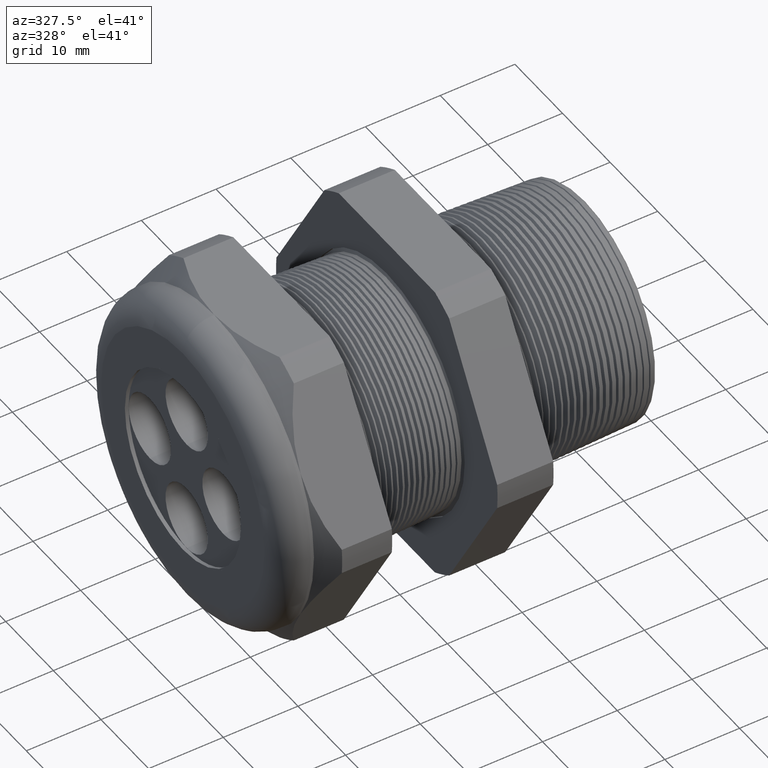
[diagram: clean part render]
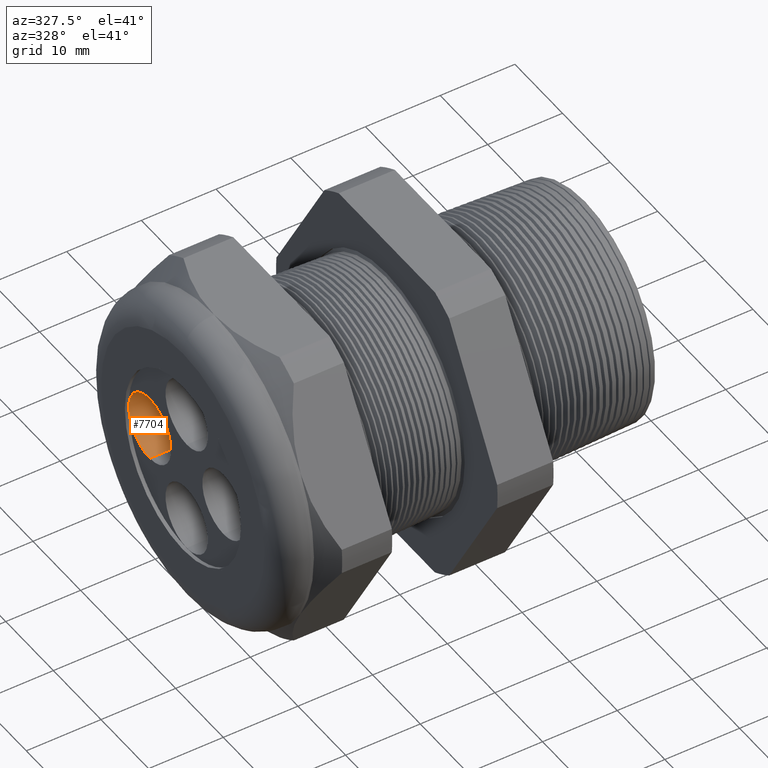
[diagram: same view with one face highlighted and labeled with its STEP entity id]
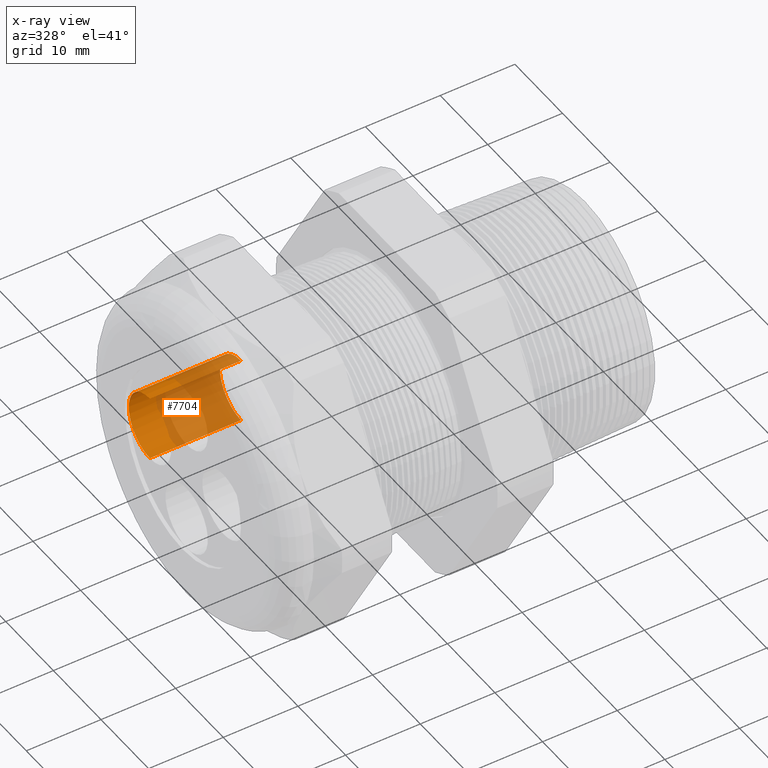
[diagram: x-ray of the same camera — body ghosted, the highlighted face saturated]
A machine part, auxiliary view. The second image highlights one B-rep face of the part: STEP entity #7704.
The next image is the same camera in x-ray: the body ghosted, the highlighted face saturated — about 67% of this face is hidden behind the body in this view.
In plain terms, the highlighted cylindrical surface (partial cylindrical patch) has radius 4.445 mm, axis along (-1, 0, 0).
Its self-contained STEP definition (entity closure, byte-faithful):
#1641 = DIRECTION ( 'NONE',  ( 0.0000000000000000000, 0.0000000000000000000, 1.000000000000000000 ) ) ;
#1642 = DIRECTION ( 'NONE',  ( -1.000000000000000000, 0.0000000000000000000, 0.0000000000000000000 ) ) ;
#1643 = CARTESIAN_POINT ( 'NONE',  ( -1.180000000000000200, 0.3042999999999999600, -3.187375160356754700E-015 ) ) ;
#1644 = AXIS2_PLACEMENT_3D ( 'NONE', #1643, #1642, #1641 ) ;
#1646 = CYLINDRICAL_SURFACE ( 'NONE', #1644, 0.1749999999999999900 ) ;
#1647 = FACE_OUTER_BOUND ( 'NONE', #7668, .T. ) ;
#1665 = DIRECTION ( 'NONE',  ( 0.0000000000000000000, -1.000000000000000000, 1.047445008332814500E-014 ) ) ;
#1666 = DIRECTION ( 'NONE',  ( -1.000000000000000000, 0.0000000000000000000, 0.0000000000000000000 ) ) ;
#1667 = CARTESIAN_POINT ( 'NONE',  ( -1.180000000000000200, 0.3042999999999999600, -3.187375160356754700E-015 ) ) ;
#1668 = AXIS2_PLACEMENT_3D ( 'NONE', #1667, #1666, #1665 ) ;
#1669 = CIRCLE ( 'NONE', #1668, 0.1749999999999999900 ) ;
#1684 = DIRECTION ( 'NONE',  ( 0.0000000000000000000, -1.000000000000000000, 1.047445008332814500E-014 ) ) ;
#1685 = DIRECTION ( 'NONE',  ( -1.000000000000000000, 0.0000000000000000000, 0.0000000000000000000 ) ) ;
#1686 = CARTESIAN_POINT ( 'NONE',  ( -1.660000000000000100, 0.3042999999999999600, -3.187375160356754700E-015 ) ) ;
#1687 = AXIS2_PLACEMENT_3D ( 'NONE', #1686, #1685, #1684 ) ;
#1688 = CIRCLE ( 'NONE', #1687, 0.1749999999999999900 ) ;
#1746 = CARTESIAN_POINT ( 'NONE',  ( -1.660000000000000100, 0.3042999999999999600, -0.1750000000000031500 ) ) ;
#1747 = DIRECTION ( 'NONE',  ( -1.000000000000000000, 0.0000000000000000000, 0.0000000000000000000 ) ) ;
#1748 = VECTOR ( 'NONE', #1747, 39.37007874015748100 ) ;
#1749 = CARTESIAN_POINT ( 'NONE',  ( -1.180000000000000200, 0.3042999999999999600, -0.1750000000000031500 ) ) ;
#1750 = LINE ( 'NONE', #1749, #1748 ) ;
#1842 = CARTESIAN_POINT ( 'NONE',  ( -1.180000000000000200, 0.3042999999999999600, -0.1750000000000031500 ) ) ;
#1843 = DIRECTION ( 'NONE',  ( -1.000000000000000000, 0.0000000000000000000, 0.0000000000000000000 ) ) ;
#1844 = VECTOR ( 'NONE', #1843, 39.37007874015748100 ) ;
#1845 = CARTESIAN_POINT ( 'NONE',  ( -1.180000000000000200, 0.3042999999999999600, 0.1749999999999968000 ) ) ;
#1849 = LINE ( 'NONE', #1845, #1844 ) ;
#1878 = CARTESIAN_POINT ( 'NONE',  ( -1.660000000000000100, 0.3042999999999999600, 0.1749999999999968000 ) ) ;
#1889 = CARTESIAN_POINT ( 'NONE',  ( -1.180000000000000200, 0.3042999999999999600, 0.1749999999999968000 ) ) ;
#2201 = ORIENTED_EDGE ( 'NONE', *, *, #7803, .T. ) ;
#7668 = EDGE_LOOP ( 'NONE', ( #7671, #7673, #2201, #7757 ) ) ;
#7671 = ORIENTED_EDGE ( 'NONE', *, *, #7749, .F. ) ;
#7673 = ORIENTED_EDGE ( 'NONE', *, *, #7690, .F. ) ;
#7690 = EDGE_CURVE ( 'NONE', #7813, #7809, #1669, .T. ) ;
#7704 = ADVANCED_FACE ( 'NONE', ( #1647 ), #1646, .F. ) ;
#7719 = EDGE_CURVE ( 'NONE', #7818, #7751, #1688, .T. ) ;
#7749 = EDGE_CURVE ( 'NONE', #7809, #7751, #1750, .T. ) ;
#7751 = VERTEX_POINT ( 'NONE', #1746 ) ;
#7757 = ORIENTED_EDGE ( 'NONE', *, *, #7719, .T. ) ;
#7803 = EDGE_CURVE ( 'NONE', #7813, #7818, #1849, .T. ) ;
#7809 = VERTEX_POINT ( 'NONE', #1842 ) ;
#7813 = VERTEX_POINT ( 'NONE', #1889 ) ;
#7818 = VERTEX_POINT ( 'NONE', #1878 ) ;